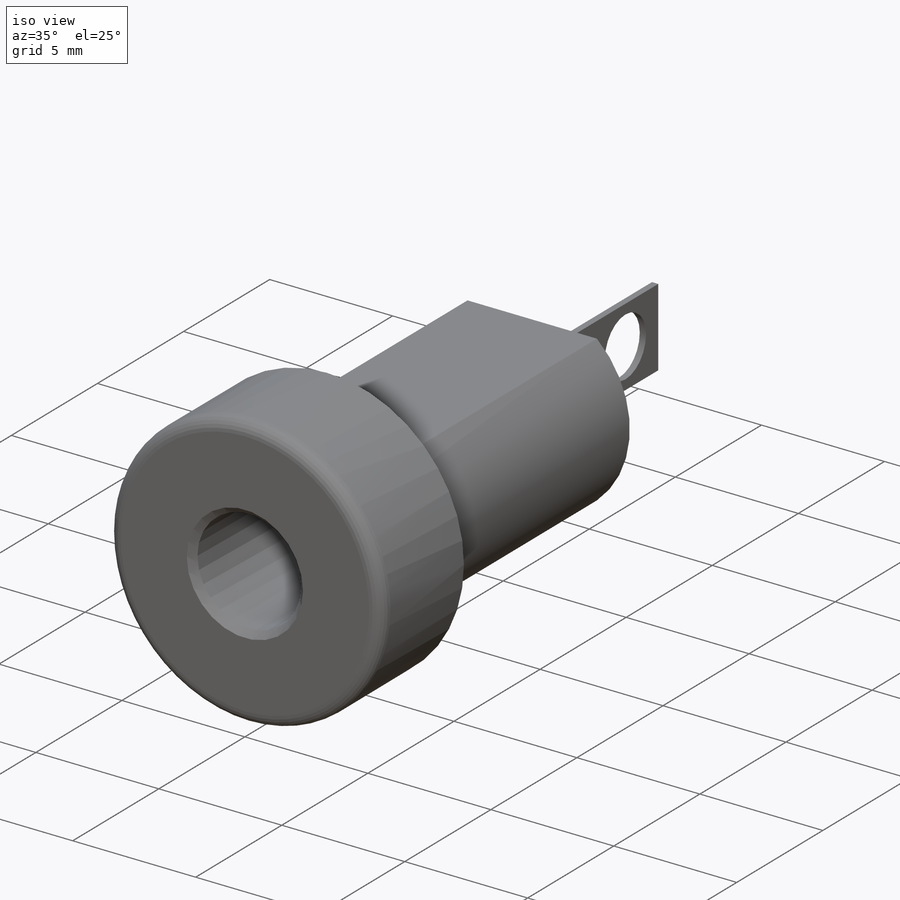
[diagram: iso view]
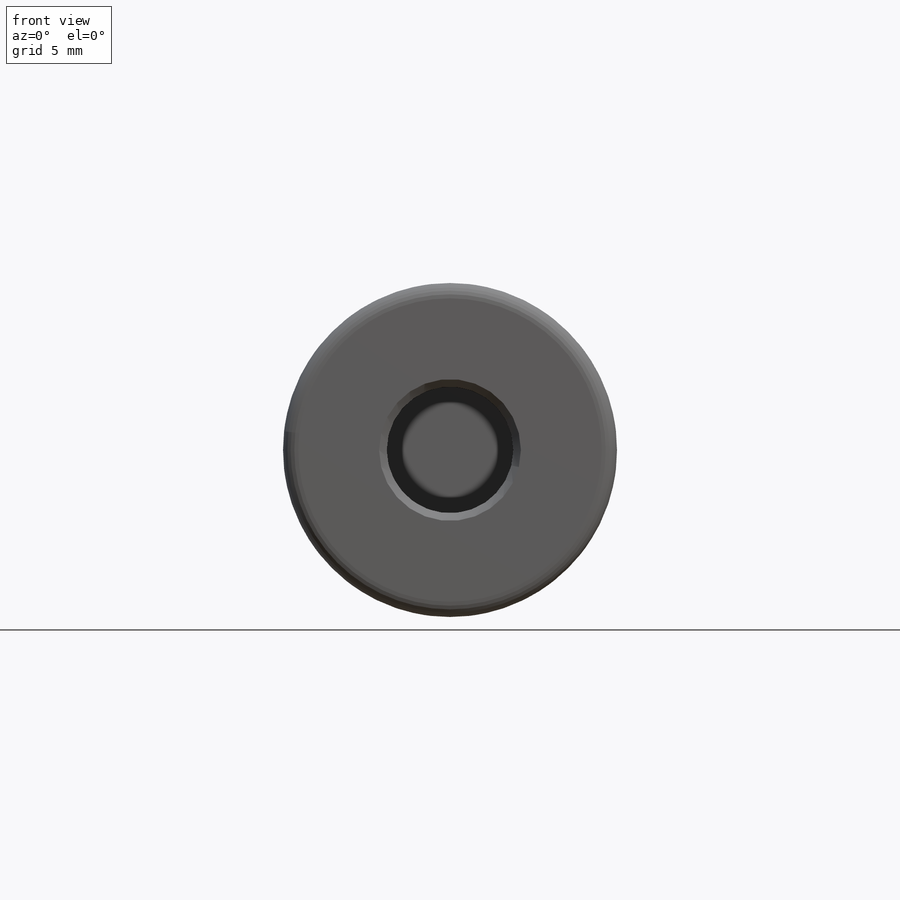
[diagram: front view]
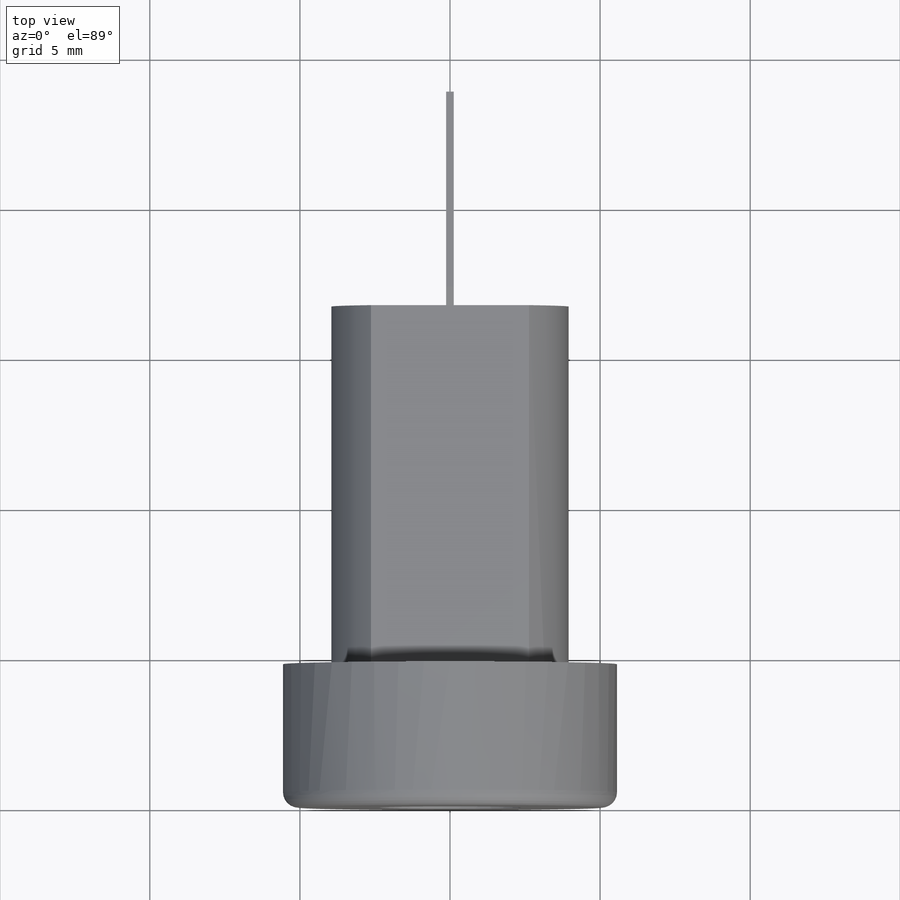
[diagram: top view]
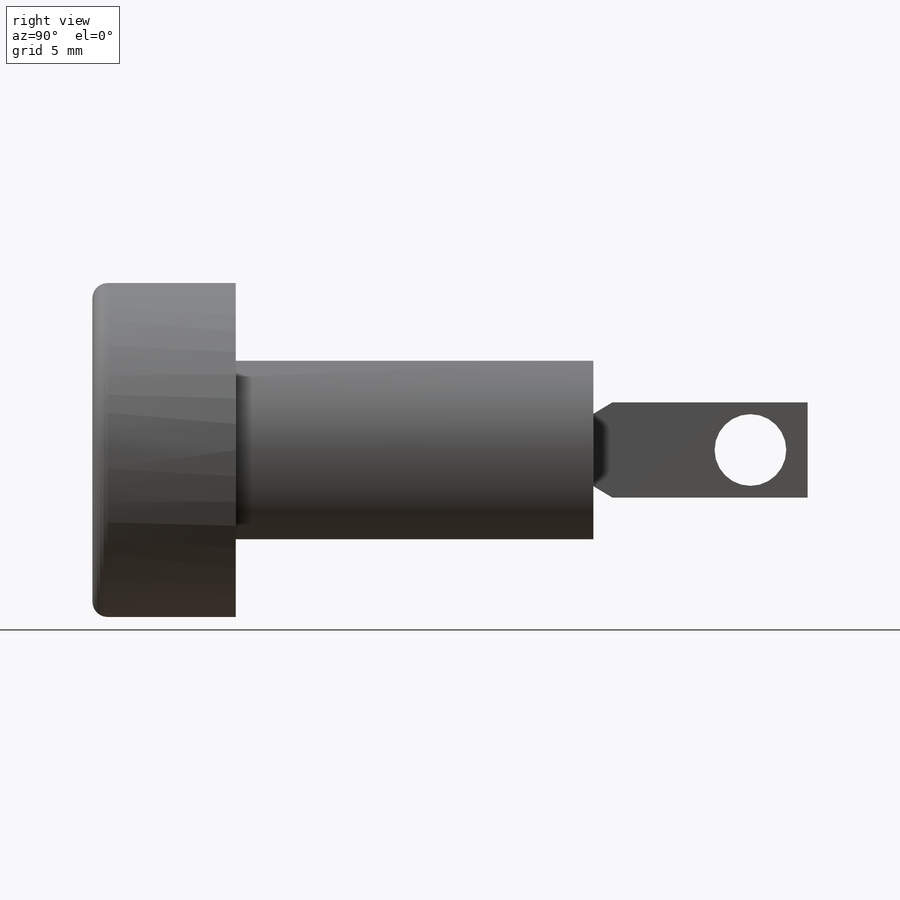
[diagram: right view]
SOLIDWORKS PART (.sldprt)
format: sldprt  version: not decoded by parser v0  size: 251,904 bytes
history: native  units: mm
features: sketch x7, cut_extrude x4, material x1, revolve x1, fillet x1, extrude x1, chamfer x1 (+16 scaffold rows collapsed)
feature tree (32):
  scaffold x16  (default folders/planes/origin — collapsed)
  material  "Material <not specified>"
  sketch  "Sketch1"  dims[c1.D1=4.7752mm c1.D2=7.9375mm c1.D3=11.9126mm c1.D4=11.1252mm c2.D2=7.9375mm]
  revolve  "Revolve1"  Angle=360deg
  fillet  "Fillet1"  Radius=0.508mm
  sketch  "Sketch2"  dims[D1=5.9436mm]
  cut_extrude  "Cut-Extrude1"  [1 undecoded]
  sketch  "Sketch3"  dims[D1=0.254mm D2=3.175mm]
  extrude  "Boss-Extrude1"  Depth=7.1374mm
  sketch  "Sketch4"  dims[D1=2.3876mm D2=1.905mm]
  cut_extrude  "Cut-Extrude2"  Depth=7.1374mm
  sketch  "Sketch5"  dims[c1.D1=7.1374mm c2.D1=~145.666392deg c3.D1=0.635mm c3.D2=0.381mm]
  cut_extrude  "Cut-Extrude3"  Depth=7.1374mm
  sketch  "Sketch7"  dims[D1=4.2164mm]
  cut_extrude  "Cut-Extrude4"  Depth=15.875mm
  chamfer  "Chamfer2"  Distance=0.254mm Angle=45deg
  sketch  "recommended cutout"  dims[D1=8.3312mm D2=6.35mm]
decode coverage: 14 of 15 modeling features carry decoded parameters
note: ~ marks probable driven/reference dimensions
note: 1 parameter value undecoded
note: suppression state not decoded; provenance and decode notes live in map.json
